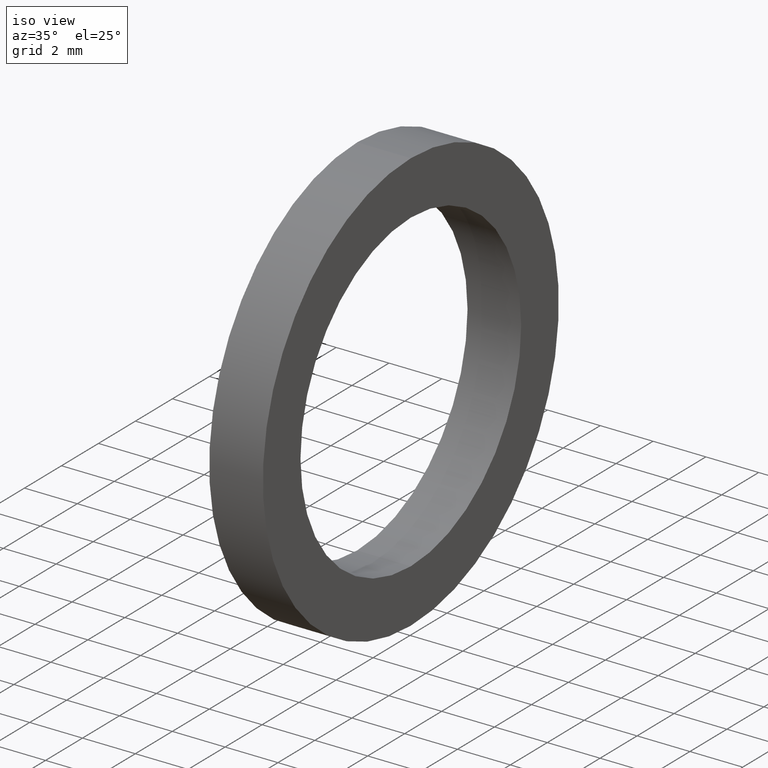
[diagram: clean part render]
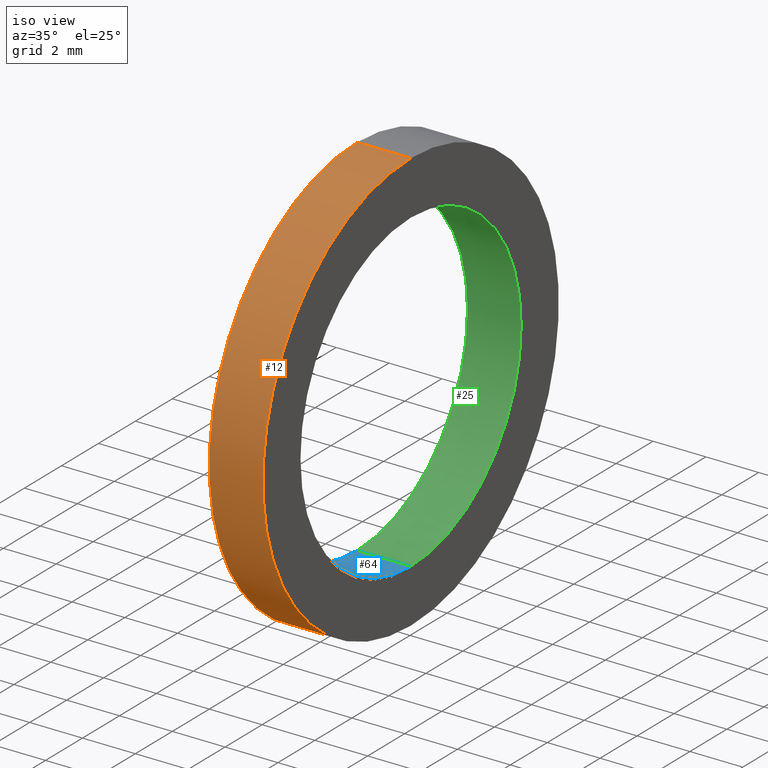
[diagram: same view with three faces highlighted in distinct colors, each labeled with its STEP entity id]
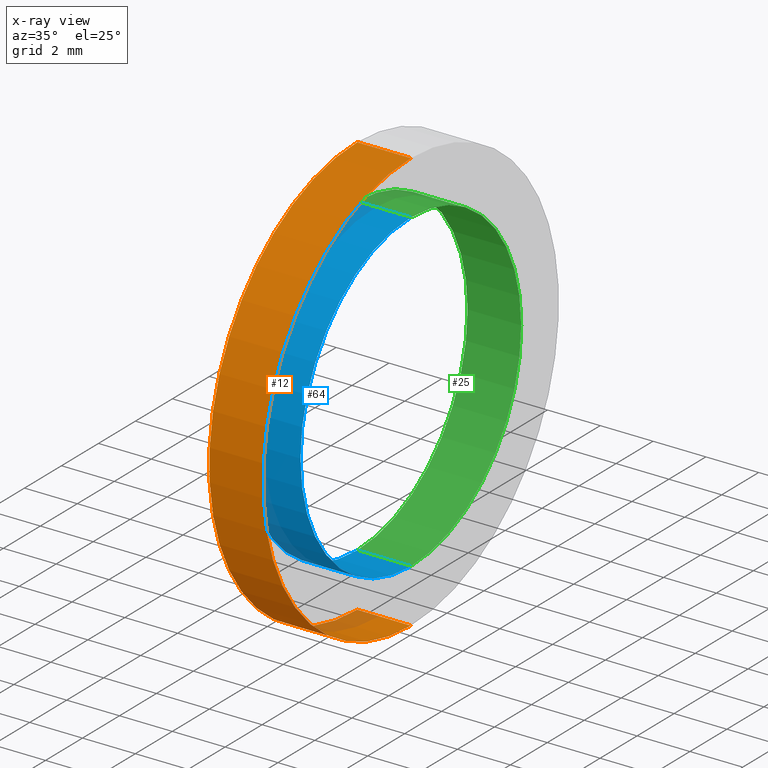
[diagram: x-ray of the same camera — body ghosted, the three highlighted faces saturated]
A machine part, iso view with three faces highlighted in distinct colors.
The next image is the same camera in x-ray (body ghosted, the three faces saturated) — at least one of them is partly hidden behind the body in this view.
Their STEP definitions:

[orange] entity #12 — the highlighted cylindrical surface (partial cylindrical patch) has radius 8.001 mm, axis along (-1, 0, 0).
#12 = ADVANCED_FACE ( 'NONE', ( #62 ), #147, .T. ) ;
#13 = EDGE_LOOP ( 'NONE', ( #18, #19, #17, #20 ) ) ;
#16 = EDGE_CURVE ( 'NONE', #50, #43, #142, .T. ) ;
#17 = ORIENTED_EDGE ( 'NONE', *, *, #47, .T. ) ;
#18 = ORIENTED_EDGE ( 'NONE', *, *, #48, .F. ) ;
#19 = ORIENTED_EDGE ( 'NONE', *, *, #16, .T. ) ;
#20 = ORIENTED_EDGE ( 'NONE', *, *, #45, .F. ) ;
#38 = VERTEX_POINT ( 'NONE', #71 ) ;
#43 = VERTEX_POINT ( 'NONE', #114 ) ;
#45 = EDGE_CURVE ( 'NONE', #58, #38, #113, .T. ) ;
#47 = EDGE_CURVE ( 'NONE', #43, #38, #108, .T. ) ;
#48 = EDGE_CURVE ( 'NONE', #50, #58, #104, .T. ) ;
#50 = VERTEX_POINT ( 'NONE', #100 ) ;
#58 = VERTEX_POINT ( 'NONE', #94 ) ;
#62 = FACE_OUTER_BOUND ( 'NONE', #13, .T. ) ;
#71 = CARTESIAN_POINT ( 'NONE',  ( 0.0000000000000000000, 0.0000000000000000000, 0.3150000000000000000 ) ) ;
#94 = CARTESIAN_POINT ( 'NONE',  ( 0.0000000000000000000, 3.857637417314162700E-017, -0.3150000000000000000 ) ) ;
#100 = CARTESIAN_POINT ( 'NONE',  ( 0.07999999999999996000, 3.857637417314163300E-017, -0.3150000000000000600 ) ) ;
#101 = DIRECTION ( 'NONE',  ( -1.000000000000000000, 0.0000000000000000000, 0.0000000000000000000 ) ) ;
#102 = VECTOR ( 'NONE', #101, 39.37007874015748100 ) ;
#103 = CARTESIAN_POINT ( 'NONE',  ( -1.721125226614714300, 3.857637417314163300E-017, -0.3150000000000000600 ) ) ;
#104 = LINE ( 'NONE', #103, #102 ) ;
#105 = DIRECTION ( 'NONE',  ( -1.000000000000000000, 0.0000000000000000000, 0.0000000000000000000 ) ) ;
#106 = VECTOR ( 'NONE', #105, 39.37007874015748100 ) ;
#107 = CARTESIAN_POINT ( 'NONE',  ( -1.721125226614714300, 0.0000000000000000000, 0.3150000000000000600 ) ) ;
#108 = LINE ( 'NONE', #107, #106 ) ;
#109 = DIRECTION ( 'NONE',  ( 0.0000000000000000000, 0.0000000000000000000, 1.000000000000000000 ) ) ;
#110 = DIRECTION ( 'NONE',  ( -1.000000000000000000, 0.0000000000000000000, 0.0000000000000000000 ) ) ;
#111 = CARTESIAN_POINT ( 'NONE',  ( 0.0000000000000000000, 0.0000000000000000000, 0.0000000000000000000 ) ) ;
#112 = AXIS2_PLACEMENT_3D ( 'NONE', #111, #110, #109 ) ;
#113 = CIRCLE ( 'NONE', #112, 0.3150000000000000000 ) ;
#114 = CARTESIAN_POINT ( 'NONE',  ( 0.07999999999999996000, 0.0000000000000000000, 0.3150000000000000600 ) ) ;
#138 = DIRECTION ( 'NONE',  ( 0.0000000000000000000, 0.0000000000000000000, 1.000000000000000000 ) ) ;
#139 = DIRECTION ( 'NONE',  ( -1.000000000000000000, 0.0000000000000000000, 0.0000000000000000000 ) ) ;
#140 = CARTESIAN_POINT ( 'NONE',  ( 0.07999999999999996000, 0.0000000000000000000, 0.0000000000000000000 ) ) ;
#141 = AXIS2_PLACEMENT_3D ( 'NONE', #140, #139, #138 ) ;
#142 = CIRCLE ( 'NONE', #141, 0.3150000000000000600 ) ;
#144 = DIRECTION ( 'NONE',  ( 0.0000000000000000000, 0.0000000000000000000, 1.000000000000000000 ) ) ;
#145 = DIRECTION ( 'NONE',  ( -1.000000000000000000, 0.0000000000000000000, 0.0000000000000000000 ) ) ;
#146 = AXIS2_PLACEMENT_3D ( 'NONE', #148, #145, #144 ) ;
#147 = CYLINDRICAL_SURFACE ( 'NONE', #146, 0.3150000000000000600 ) ;
#148 = CARTESIAN_POINT ( 'NONE',  ( -1.721125226614714300, 0.0000000000000000000, 0.0000000000000000000 ) ) ;

[blue] entity #64 — the highlighted cylindrical surface (partial cylindrical patch) has radius 5.969 mm, axis along (-1, 0, 0).
#28 = EDGE_LOOP ( 'NONE', ( #65, #36, #34, #33 ) ) ;
#31 = EDGE_CURVE ( 'NONE', #40, #32, #121, .T. ) ;
#32 = VERTEX_POINT ( 'NONE', #81 ) ;
#33 = ORIENTED_EDGE ( 'NONE', *, *, #31, .F. ) ;
#34 = ORIENTED_EDGE ( 'NONE', *, *, #35, .T. ) ;
#35 = EDGE_CURVE ( 'NONE', #41, #32, #80, .T. ) ;
#36 = ORIENTED_EDGE ( 'NONE', *, *, #37, .T. ) ;
#37 = EDGE_CURVE ( 'NONE', #39, #41, #75, .T. ) ;
#39 = VERTEX_POINT ( 'NONE', #70 ) ;
#40 = VERTEX_POINT ( 'NONE', #69 ) ;
#41 = VERTEX_POINT ( 'NONE', #68 ) ;
#42 = EDGE_CURVE ( 'NONE', #39, #40, #118, .T. ) ;
#64 = ADVANCED_FACE ( 'NONE', ( #158 ), #176, .F. ) ;
#65 = ORIENTED_EDGE ( 'NONE', *, *, #42, .F. ) ;
#67 = CARTESIAN_POINT ( 'NONE',  ( 0.07999999999999996000, 0.0000000000000000000, 0.0000000000000000000 ) ) ;
#68 = CARTESIAN_POINT ( 'NONE',  ( 0.0000000000000000000, 2.877919977996279800E-017, -0.2350000000000000100 ) ) ;
#69 = CARTESIAN_POINT ( 'NONE',  ( 0.07999999999999996000, 0.0000000000000000000, 0.2349999999999999600 ) ) ;
#70 = CARTESIAN_POINT ( 'NONE',  ( 0.07999999999999996000, 2.877919977996279200E-017, -0.2349999999999999600 ) ) ;
#72 = DIRECTION ( 'NONE',  ( -1.000000000000000000, 0.0000000000000000000, 0.0000000000000000000 ) ) ;
#73 = VECTOR ( 'NONE', #72, 39.37007874015748100 ) ;
#74 = CARTESIAN_POINT ( 'NONE',  ( -1.721125226614714300, 2.877919977996279200E-017, -0.2349999999999999600 ) ) ;
#75 = LINE ( 'NONE', #74, #73 ) ;
#76 = DIRECTION ( 'NONE',  ( 0.0000000000000000000, 0.0000000000000000000, 1.000000000000000000 ) ) ;
#77 = DIRECTION ( 'NONE',  ( -1.000000000000000000, 0.0000000000000000000, 0.0000000000000000000 ) ) ;
#78 = CARTESIAN_POINT ( 'NONE',  ( 0.0000000000000000000, 0.0000000000000000000, 0.0000000000000000000 ) ) ;
#79 = AXIS2_PLACEMENT_3D ( 'NONE', #78, #77, #76 ) ;
#80 = CIRCLE ( 'NONE', #79, 0.2349999999999999900 ) ;
#81 = CARTESIAN_POINT ( 'NONE',  ( 0.0000000000000000000, 0.0000000000000000000, 0.2349999999999999900 ) ) ;
#82 = DIRECTION ( 'NONE',  ( -1.000000000000000000, 0.0000000000000000000, 0.0000000000000000000 ) ) ;
#115 = DIRECTION ( 'NONE',  ( 0.0000000000000000000, 0.0000000000000000000, 1.000000000000000000 ) ) ;
#116 = DIRECTION ( 'NONE',  ( -1.000000000000000000, 0.0000000000000000000, 0.0000000000000000000 ) ) ;
#117 = AXIS2_PLACEMENT_3D ( 'NONE', #67, #116, #115 ) ;
#118 = CIRCLE ( 'NONE', #117, 0.2349999999999999600 ) ;
#119 = VECTOR ( 'NONE', #82, 39.37007874015748100 ) ;
#120 = CARTESIAN_POINT ( 'NONE',  ( -1.721125226614714300, 0.0000000000000000000, 0.2349999999999999600 ) ) ;
#121 = LINE ( 'NONE', #120, #119 ) ;
#158 = FACE_OUTER_BOUND ( 'NONE', #28, .T. ) ;
#171 = DIRECTION ( 'NONE',  ( 0.0000000000000000000, 0.0000000000000000000, 1.000000000000000000 ) ) ;
#172 = DIRECTION ( 'NONE',  ( -1.000000000000000000, 0.0000000000000000000, 0.0000000000000000000 ) ) ;
#173 = CARTESIAN_POINT ( 'NONE',  ( -1.721125226614714300, 0.0000000000000000000, 0.0000000000000000000 ) ) ;
#174 = AXIS2_PLACEMENT_3D ( 'NONE', #173, #172, #171 ) ;
#176 = CYLINDRICAL_SURFACE ( 'NONE', #174, 0.2349999999999999600 ) ;

[green] entity #25 — the highlighted cylindrical surface (partial cylindrical patch) has radius 5.969 mm, axis along (-1, 0, 0).
#2 = EDGE_CURVE ( 'NONE', #40, #39, #61, .T. ) ;
#6 = ORIENTED_EDGE ( 'NONE', *, *, #31, .T. ) ;
#9 = ORIENTED_EDGE ( 'NONE', *, *, #37, .F. ) ;
#21 = EDGE_CURVE ( 'NONE', #32, #41, #136, .T. ) ;
#22 = ORIENTED_EDGE ( 'NONE', *, *, #21, .T. ) ;
#24 = ORIENTED_EDGE ( 'NONE', *, *, #2, .F. ) ;
#25 = ADVANCED_FACE ( 'NONE', ( #137 ), #130, .F. ) ;
#29 = EDGE_LOOP ( 'NONE', ( #9, #24, #6, #22 ) ) ;
#31 = EDGE_CURVE ( 'NONE', #40, #32, #121, .T. ) ;
#32 = VERTEX_POINT ( 'NONE', #81 ) ;
#37 = EDGE_CURVE ( 'NONE', #39, #41, #75, .T. ) ;
#39 = VERTEX_POINT ( 'NONE', #70 ) ;
#40 = VERTEX_POINT ( 'NONE', #69 ) ;
#41 = VERTEX_POINT ( 'NONE', #68 ) ;
#60 = CARTESIAN_POINT ( 'NONE',  ( 0.07999999999999996000, 0.0000000000000000000, 0.0000000000000000000 ) ) ;
#61 = CIRCLE ( 'NONE', #151, 0.2349999999999999600 ) ;
#68 = CARTESIAN_POINT ( 'NONE',  ( 0.0000000000000000000, 2.877919977996279800E-017, -0.2350000000000000100 ) ) ;
#69 = CARTESIAN_POINT ( 'NONE',  ( 0.07999999999999996000, 0.0000000000000000000, 0.2349999999999999600 ) ) ;
#70 = CARTESIAN_POINT ( 'NONE',  ( 0.07999999999999996000, 2.877919977996279200E-017, -0.2349999999999999600 ) ) ;
#72 = DIRECTION ( 'NONE',  ( -1.000000000000000000, 0.0000000000000000000, 0.0000000000000000000 ) ) ;
#73 = VECTOR ( 'NONE', #72, 39.37007874015748100 ) ;
#74 = CARTESIAN_POINT ( 'NONE',  ( -1.721125226614714300, 2.877919977996279200E-017, -0.2349999999999999600 ) ) ;
#75 = LINE ( 'NONE', #74, #73 ) ;
#81 = CARTESIAN_POINT ( 'NONE',  ( 0.0000000000000000000, 0.0000000000000000000, 0.2349999999999999900 ) ) ;
#82 = DIRECTION ( 'NONE',  ( -1.000000000000000000, 0.0000000000000000000, 0.0000000000000000000 ) ) ;
#119 = VECTOR ( 'NONE', #82, 39.37007874015748100 ) ;
#120 = CARTESIAN_POINT ( 'NONE',  ( -1.721125226614714300, 0.0000000000000000000, 0.2349999999999999600 ) ) ;
#121 = LINE ( 'NONE', #120, #119 ) ;
#127 = DIRECTION ( 'NONE',  ( 0.0000000000000000000, 0.0000000000000000000, 1.000000000000000000 ) ) ;
#128 = DIRECTION ( 'NONE',  ( -1.000000000000000000, 0.0000000000000000000, 0.0000000000000000000 ) ) ;
#129 = AXIS2_PLACEMENT_3D ( 'NONE', #132, #128, #127 ) ;
#130 = CYLINDRICAL_SURFACE ( 'NONE', #129, 0.2349999999999999600 ) ;
#132 = CARTESIAN_POINT ( 'NONE',  ( -1.721125226614714300, 0.0000000000000000000, 0.0000000000000000000 ) ) ;
#133 = DIRECTION ( 'NONE',  ( 0.0000000000000000000, 0.0000000000000000000, 1.000000000000000000 ) ) ;
#134 = DIRECTION ( 'NONE',  ( -1.000000000000000000, 0.0000000000000000000, 0.0000000000000000000 ) ) ;
#135 = AXIS2_PLACEMENT_3D ( 'NONE', #143, #134, #133 ) ;
#136 = CIRCLE ( 'NONE', #135, 0.2349999999999999900 ) ;
#137 = FACE_OUTER_BOUND ( 'NONE', #29, .T. ) ;
#143 = CARTESIAN_POINT ( 'NONE',  ( 0.0000000000000000000, 0.0000000000000000000, 0.0000000000000000000 ) ) ;
#149 = DIRECTION ( 'NONE',  ( 0.0000000000000000000, 0.0000000000000000000, 1.000000000000000000 ) ) ;
#150 = DIRECTION ( 'NONE',  ( -1.000000000000000000, 0.0000000000000000000, 0.0000000000000000000 ) ) ;
#151 = AXIS2_PLACEMENT_3D ( 'NONE', #60, #150, #149 ) ;